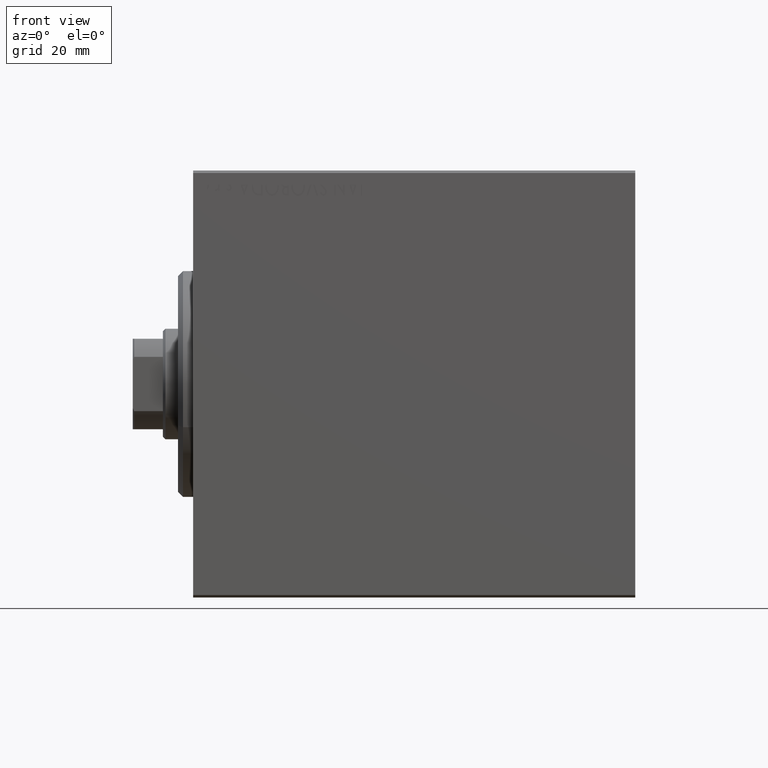
[diagram: clean part render]
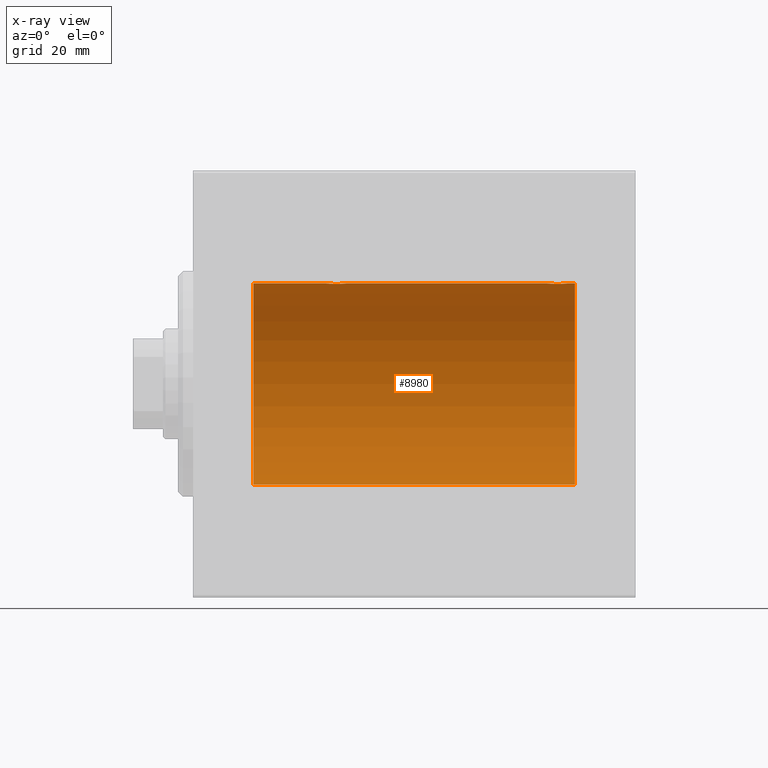
[diagram: x-ray — body ghosted, one internal face saturated and labeled with its STEP entity id]
A machine part, front view, then the same camera in x-ray: the body is ghosted and one INTERNAL B-rep face — a face not visible from any outside direction — is saturated and labeled: STEP entity #8980.
In plain terms, the highlighted cylindrical surface (partial cylindrical patch) has radius 20 mm, axis along (-1, -0, -0).
Its self-contained STEP definition (entity closure, byte-faithful):
#196 = CARTESIAN_POINT ( 'NONE',  ( 70.70246098872841856, 0.8865903856744244971, 19.98070694681040038 ) ) ;
#627 = CARTESIAN_POINT ( 'NONE',  ( 74.39765113166073718, 0.6450624715427610845, 19.98996196681220283 ) ) ;
#1075 = CARTESIAN_POINT ( 'NONE',  ( 27.98100525813890371, 1.935912154109691308, 19.90610216711450775 ) ) ;
#1413 = VERTEX_POINT ( 'NONE', #29571 ) ;
#1521 = CARTESIAN_POINT ( 'NONE',  ( 30.39765113166074073, 0.6450624715427593081, 19.98996196681220283 ) ) ;
#2182 = CARTESIAN_POINT ( 'NONE',  ( 26.76510545398016205, 1.003547732426802286, 19.97510079925437765 ) ) ;
#2394 = CARTESIAN_POINT ( 'NONE',  ( 76.00000000000000000, 0.000000000000000000, 20.00000000000000000 ) ) ;
#2401 = CARTESIAN_POINT ( 'NONE',  ( 27.17939834916166575, 1.507796451871720844, 19.94330239452387943 ) ) ;
#2478 = ORIENTED_EDGE ( 'NONE', *, *, #9122, .T. ) ;
#3542 = CARTESIAN_POINT ( 'NONE',  ( 74.00615770380713343, 1.322305185229304181, 19.95645382900617548 ) ) ;
#3551 = VERTEX_POINT ( 'NONE', #26970 ) ;
#4189 = CARTESIAN_POINT ( 'NONE',  ( 71.49702773215048524, 1.735228749583821672, 19.92471474456648650 ) ) ;
#4620 = ORIENTED_EDGE ( 'NONE', *, *, #41609, .T. ) ;
#5072 = CARTESIAN_POINT ( 'NONE',  ( 29.02513908454999125, 1.947330458682948739, 19.90522393307485061 ) ) ;
#5294 = FACE_OUTER_BOUND ( 'NONE', #30233, .T. ) ;
#5505 = CARTESIAN_POINT ( 'NONE',  ( 26.90992932310326680, 1.220099331833893963, 19.96304379627741099 ) ) ;
#5731 = CYLINDRICAL_SURFACE ( 'NONE', #40936, 20.00000000000000000 ) ;
#6454 = DIRECTION ( 'NONE',  ( -1.000000000000000000, -0.000000000000000000, -0.000000000000000000 ) ) ;
#6650 = CARTESIAN_POINT ( 'NONE',  ( 70.51308707988556534, 0.2631998640366407516, 19.99867931558986101 ) ) ;
#6864 = CARTESIAN_POINT ( 'NONE',  ( 71.85628869360149906, 1.898109641280496751, 19.90978941500367227 ) ) ;
#7385 = CARTESIAN_POINT ( 'NONE',  ( 76.00000000000000000, 0.000000000000000000, 0.000000000000000000 ) ) ;
#7738 = CARTESIAN_POINT ( 'NONE',  ( 29.72950112230633124, 1.598854313793179660, 19.93684595445884256 ) ) ;
#7965 = CARTESIAN_POINT ( 'NONE',  ( 28.23758582179998911, 1.987020435121066742, 19.90106552791689509 ) ) ;
#8186 = CARTESIAN_POINT ( 'NONE',  ( 30.50000000000000000, -9.453669475664189070E-16, 20.00000000000000000 ) ) ;
#8756 = CARTESIAN_POINT ( 'NONE',  ( 76.00000000000000000, 0.000000000000000000, 20.00000000000000000 ) ) ;
#8980 = ADVANCED_FACE ( 'NONE', ( #5294 ), #5731, .F. ) ;
#9045 = VERTEX_POINT ( 'NONE', #22417 ) ;
#9122 = EDGE_CURVE ( 'NONE', #17795, #23974, #26179, .T. ) ;
#9712 = CARTESIAN_POINT ( 'NONE',  ( 26.50000000000000711, 0.1305706983324430859, 20.00000000000000355 ) ) ;
#9993 = CARTESIAN_POINT ( 'NONE',  ( 74.09059733457554842, 1.219458756546262235, 19.96308513509967142 ) ) ;
#10693 = CIRCLE ( 'NONE', #38398, 20.00000000000000000 ) ;
#10716 = DIRECTION ( 'NONE',  ( -1.000000000000000000, 0.000000000000000000, 0.000000000000000000 ) ) ;
#10853 = CARTESIAN_POINT ( 'NONE',  ( 71.28039724650255948, 1.590453176650905798, 19.93679350243183634 ) ) ;
#10940 = CARTESIAN_POINT ( 'NONE',  ( 11.99999999999999645, 0.000000000000000000, 0.000000000000000000 ) ) ;
#10946 = DIRECTION ( 'NONE',  ( -1.000000000000000000, 0.000000000000000000, 0.000000000000000000 ) ) ;
#11364 = CARTESIAN_POINT ( 'NONE',  ( 76.00000000000000000, 2.449293598294706513E-15, -20.00000000000000000 ) ) ;
#11754 = CARTESIAN_POINT ( 'NONE',  ( 30.00615770380712988, 1.322305185229305735, 19.95645382900617548 ) ) ;
#12084 = CARTESIAN_POINT ( 'NONE',  ( 11.99999999999999645, 2.449293598294706513E-15, -20.00000000000000000 ) ) ;
#13083 = CARTESIAN_POINT ( 'NONE',  ( 26.50000000000000355, -1.552596590610734385E-23, 20.00000000000000000 ) ) ;
#13505 = ORIENTED_EDGE ( 'NONE', *, *, #35303, .T. ) ;
#13781 = CARTESIAN_POINT ( 'NONE',  ( 71.61403810544165083, 1.797847595792759101, 19.91909332229799645 ) ) ;
#14220 = CARTESIAN_POINT ( 'NONE',  ( 72.76180153897439595, 1.999905101582712952, 19.89975827978156531 ) ) ;
#14438 = CARTESIAN_POINT ( 'NONE',  ( 74.23576365127897247, 1.002099838626306916, 19.97517568592525805 ) ) ;
#14810 = VERTEX_POINT ( 'NONE', #11364 ) ;
#14885 = ORIENTED_EDGE ( 'NONE', *, *, #31881, .T. ) ;
#15764 = CARTESIAN_POINT ( 'NONE',  ( 27.28039724650257014, 1.590453176650910017, 19.93679350243183990 ) ) ;
#16086 = CARTESIAN_POINT ( 'NONE',  ( 74.50000000000001421, 1.186436973908835920E-15, 20.00000000000000000 ) ) ;
#16192 = CARTESIAN_POINT ( 'NONE',  ( 76.00000000000000000, 0.000000000000000000, 0.000000000000000000 ) ) ;
#16801 = VECTOR ( 'NONE', #39771, 1000.000000000000000 ) ;
#16907 = CARTESIAN_POINT ( 'NONE',  ( 70.50000000000000000, -1.553188236289650144E-23, 20.00000000000000000 ) ) ;
#17135 = CARTESIAN_POINT ( 'NONE',  ( 71.17939834916165864, 1.507796451871717291, 19.94330239452387943 ) ) ;
#17787 = CARTESIAN_POINT ( 'NONE',  ( 74.50000000000001421, 1.186436973908835920E-15, 20.00000000000000000 ) ) ;
#17795 = VERTEX_POINT ( 'NONE', #2394 ) ;
#17867 = DIRECTION ( 'NONE',  ( 0.000000000000000000, 0.000000000000000000, 1.000000000000000000 ) ) ;
#18578 = DIRECTION ( 'NONE',  ( -1.000000000000000000, -0.000000000000000000, -0.000000000000000000 ) ) ;
#18665 = CARTESIAN_POINT ( 'NONE',  ( 27.85628869360149906, 1.898109641280498083, 19.90978941500367583 ) ) ;
#19023 = CARTESIAN_POINT ( 'NONE',  ( 11.99999999999999645, 0.000000000000000000, 20.00000000000000000 ) ) ;
#19101 = CARTESIAN_POINT ( 'NONE',  ( 26.56426851132708222, 0.5196544277756667274, 19.99365919015135873 ) ) ;
#19112 = CIRCLE ( 'NONE', #38970, 20.00000000000000000 ) ;
#19746 = CARTESIAN_POINT ( 'NONE',  ( 26.70246098872837592, 0.8865903856744279388, 19.98070694681038972 ) ) ;
#20234 = CARTESIAN_POINT ( 'NONE',  ( 72.23758582180001042, 1.987020435121064521, 19.90106552791689154 ) ) ;
#20449 = CARTESIAN_POINT ( 'NONE',  ( 73.50645759073830732, 1.747830109444737046, 19.92373272380676852 ) ) ;
#20664 = CARTESIAN_POINT ( 'NONE',  ( 73.72950112230634545, 1.598854313793176551, 19.93684595445884966 ) ) ;
#20891 = EDGE_CURVE ( 'NONE', #17795, #14810, #19112, .T. ) ;
#21553 = CARTESIAN_POINT ( 'NONE',  ( 30.29721343056696270, 0.8872481584516728192, 19.98067755938509293 ) ) ;
#21763 = CARTESIAN_POINT ( 'NONE',  ( 30.49999999999998934, 0.1322335637814726905, 19.99999999999999645 ) ) ;
#22260 = VECTOR ( 'NONE', #6454, 1000.000000000000000 ) ;
#22417 = CARTESIAN_POINT ( 'NONE',  ( 70.50000000000000000, -1.553188236289650144E-23, 20.00000000000000000 ) ) ;
#23356 = LINE ( 'NONE', #36941, #22260 ) ;
#23801 = VERTEX_POINT ( 'NONE', #12084 ) ;
#23974 = VERTEX_POINT ( 'NONE', #16086 ) ;
#24204 = CARTESIAN_POINT ( 'NONE',  ( 72.37018818709297818, 2.000047251570878704, 19.89974399317116749 ) ) ;
#24643 = CARTESIAN_POINT ( 'NONE',  ( 30.43615228383326610, 0.5179893069484617918, 19.99370013622814213 ) ) ;
#25313 = CARTESIAN_POINT ( 'NONE',  ( 29.50645759073829666, 1.747830109444738822, 19.92373272380676852 ) ) ;
#25556 = EDGE_CURVE ( 'NONE', #27373, #23801, #10693, .T. ) ;
#25734 = ORIENTED_EDGE ( 'NONE', *, *, #42737, .T. ) ;
#25748 = DIRECTION ( 'NONE',  ( -1.000000000000000000, -0.000000000000000000, -0.000000000000000000 ) ) ;
#26179 = LINE ( 'NONE', #39991, #16801 ) ;
#26209 = ORIENTED_EDGE ( 'NONE', *, *, #25556, .T. ) ;
#26966 = VECTOR ( 'NONE', #40087, 1000.000000000000000 ) ;
#26970 = CARTESIAN_POINT ( 'NONE',  ( 30.50000000000000000, -9.453669475664189070E-16, 20.00000000000000000 ) ) ;
#27107 = CARTESIAN_POINT ( 'NONE',  ( 70.76510545398019758, 1.003547732426800287, 19.97510079925437765 ) ) ;
#27196 = DIRECTION ( 'NONE',  ( 0.000000000000000000, 0.000000000000000000, 1.000000000000000000 ) ) ;
#27318 = CARTESIAN_POINT ( 'NONE',  ( 74.29721343056696981, 0.8872481584516744846, 19.98067755938508938 ) ) ;
#27373 = VERTEX_POINT ( 'NONE', #19023 ) ;
#27530 = CARTESIAN_POINT ( 'NONE',  ( 74.43615228383326610, 0.5179893069484604595, 19.99370013622813858 ) ) ;
#27760 = CARTESIAN_POINT ( 'NONE',  ( 71.98100525813890727, 1.935912154109689753, 19.90610216711451130 ) ) ;
#27974 = CARTESIAN_POINT ( 'NONE',  ( 74.48701494615326624, 0.2622407139811092636, 19.99868965376114716 ) ) ;
#29308 = CARTESIAN_POINT ( 'NONE',  ( 26.60210312641135033, 0.6443418861413088283, 19.98998539619404724 ) ) ;
#29523 = DIRECTION ( 'NONE',  ( 0.000000000000000000, 0.000000000000000000, 1.000000000000000000 ) ) ;
#29571 = CARTESIAN_POINT ( 'NONE',  ( 26.50000000000000355, -1.552596590610734385E-23, 20.00000000000000000 ) ) ;
#29740 = CARTESIAN_POINT ( 'NONE',  ( 27.61403810544162951, 1.797847595792757769, 19.91909332229799290 ) ) ;
#29844 = CARTESIAN_POINT ( 'NONE',  ( 76.00000000000000000, 0.000000000000000000, 20.00000000000000000 ) ) ;
#30233 = EDGE_LOOP ( 'NONE', ( #40343, #31349, #2478, #14885, #4620, #13505, #25734, #26209 ) ) ;
#30675 = CARTESIAN_POINT ( 'NONE',  ( 70.90992932310328456, 1.220099331833891965, 19.96304379627741810 ) ) ;
#31349 = ORIENTED_EDGE ( 'NONE', *, *, #20891, .F. ) ;
#31558 = CARTESIAN_POINT ( 'NONE',  ( 28.76180153897438174, 1.999905101582716727, 19.89975827978156531 ) ) ;
#31881 = EDGE_CURVE ( 'NONE', #23974, #9045, #42348, .T. ) ;
#32004 = CARTESIAN_POINT ( 'NONE',  ( 30.48701494615325203, 0.2622407139811110399, 19.99868965376114716 ) ) ;
#32078 = B_SPLINE_CURVE_WITH_KNOTS ( 'NONE', 3,
 ( #8186, #21763, #32004, #24643, #1521, #21553, #42227, #38225, #11754, #7738, #25313, #5072, #31558, #38453, #7965, #1075, #18665, #29740, #32656, #15764, #2401, #43538, #5505, #2182, #19746, #29308, #19101, #35775, #9712, #13083 ),
 .UNSPECIFIED., .F., .F.,
 ( 4, 2, 2, 2, 2, 2, 2, 2, 2, 2, 2, 2, 2, 2, 4 ),
 ( 1.491064056086547960E-18, 0.0003910512220831125949, 0.0007821024441662236719, 0.001173153666249334695, 0.001564204888332445826, 0.002346307332498667655, 0.003128409776664889917, 0.003519460998748006036, 0.003910512220831123022, 0.004301563442914238707, 0.004692614664997354391, 0.005083665887080470944, 0.005474717109163585761, 0.005865768331246702313, 0.006256819553329818866 ),
 .UNSPECIFIED. ) ;
#32656 = CARTESIAN_POINT ( 'NONE',  ( 27.49702773215046392, 1.735228749583825225, 19.92471474456649005 ) ) ;
#32700 = VECTOR ( 'NONE', #18578, 1000.000000000000000 ) ;
#33630 = LINE ( 'NONE', #29844, #26966 ) ;
#34006 = CARTESIAN_POINT ( 'NONE',  ( 73.02513908454996283, 1.947330458682945187, 19.90522393307484705 ) ) ;
#34225 = CARTESIAN_POINT ( 'NONE',  ( 70.56426851132709999, 0.5196544277756649510, 19.99365919015136583 ) ) ;
#35303 = EDGE_CURVE ( 'NONE', #3551, #1413, #32078, .T. ) ;
#35775 = CARTESIAN_POINT ( 'NONE',  ( 26.51308707988552982, 0.2631998640366418063, 19.99867931558985745 ) ) ;
#36941 = CARTESIAN_POINT ( 'NONE',  ( 76.00000000000000000, 2.449293598294706513E-15, -20.00000000000000000 ) ) ;
#37060 = EDGE_CURVE ( 'NONE', #14810, #23801, #23356, .T. ) ;
#37135 = CARTESIAN_POINT ( 'NONE',  ( 70.99261358456013227, 1.321069663197660171, 19.95654117037011943 ) ) ;
#37347 = CARTESIAN_POINT ( 'NONE',  ( 74.50000000000002842, 0.1322335637814732179, 19.99999999999999289 ) ) ;
#38225 = CARTESIAN_POINT ( 'NONE',  ( 30.09059733457551999, 1.219458756546268674, 19.96308513509966787 ) ) ;
#38398 = AXIS2_PLACEMENT_3D ( 'NONE', #10940, #10716, #17867 ) ;
#38453 = CARTESIAN_POINT ( 'NONE',  ( 28.37018818709294266, 2.000047251570880924, 19.89974399317116038 ) ) ;
#38796 = LINE ( 'NONE', #8756, #32700 ) ;
#38970 = AXIS2_PLACEMENT_3D ( 'NONE', #7385, #10946, #27196 ) ;
#39771 = DIRECTION ( 'NONE',  ( -1.000000000000000000, -0.000000000000000000, -0.000000000000000000 ) ) ;
#39991 = CARTESIAN_POINT ( 'NONE',  ( 76.00000000000000000, 0.000000000000000000, 20.00000000000000000 ) ) ;
#40087 = DIRECTION ( 'NONE',  ( -1.000000000000000000, -0.000000000000000000, -0.000000000000000000 ) ) ;
#40343 = ORIENTED_EDGE ( 'NONE', *, *, #37060, .F. ) ;
#40936 = AXIS2_PLACEMENT_3D ( 'NONE', #16192, #25748, #29523 ) ;
#41115 = CARTESIAN_POINT ( 'NONE',  ( 70.50000000000001421, 0.1305706983324430304, 20.00000000000001066 ) ) ;
#41340 = CARTESIAN_POINT ( 'NONE',  ( 70.60210312641139296, 0.6443418861413054977, 19.98998539619405435 ) ) ;
#41609 = EDGE_CURVE ( 'NONE', #9045, #3551, #33630, .T. ) ;
#42227 = CARTESIAN_POINT ( 'NONE',  ( 30.23576365127895471, 1.002099838626313133, 19.97517568592526516 ) ) ;
#42348 = B_SPLINE_CURVE_WITH_KNOTS ( 'NONE', 3,
 ( #17787, #37347, #27974, #27530, #627, #27318, #14438, #9993, #3542, #20664, #20449, #34006, #14220, #24204, #20234, #27760, #6864, #13781, #4189, #10853, #17135, #37135, #30675, #27107, #196, #41340, #34225, #6650, #41115, #16907 ),
 .UNSPECIFIED., .F., .F.,
 ( 4, 2, 2, 2, 2, 2, 2, 2, 2, 2, 2, 2, 2, 2, 4 ),
 ( 1.152885170027690115E-18, 0.0003910512220831370437, 0.0007821024441662730031, 0.001173153666249408637, 0.001564204888332544705, 0.002346307332498786483, 0.003128409776665028695, 0.003519460998748129201, 0.003910512220831229707, 0.004301563442914329780, 0.004692614664997429852, 0.005083665887080529924, 0.005474717109163630864, 0.005865768331246730936, 0.006256819553329831876 ),
 .UNSPECIFIED. ) ;
#42737 = EDGE_CURVE ( 'NONE', #1413, #27373, #38796, .T. ) ;
#43538 = CARTESIAN_POINT ( 'NONE',  ( 26.99261358456011806, 1.321069663197663724, 19.95654117037012298 ) ) ;